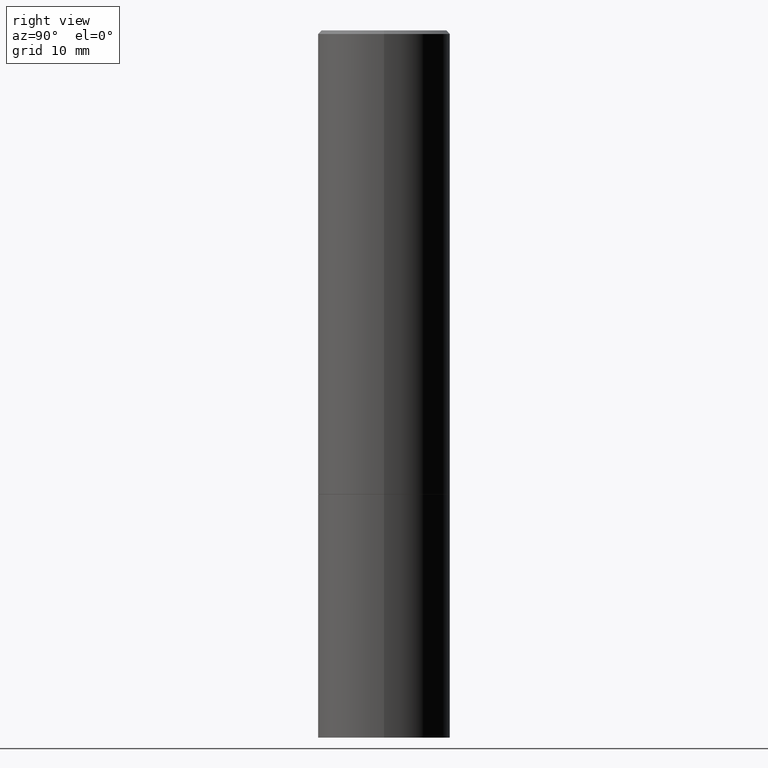
[diagram: clean part render]
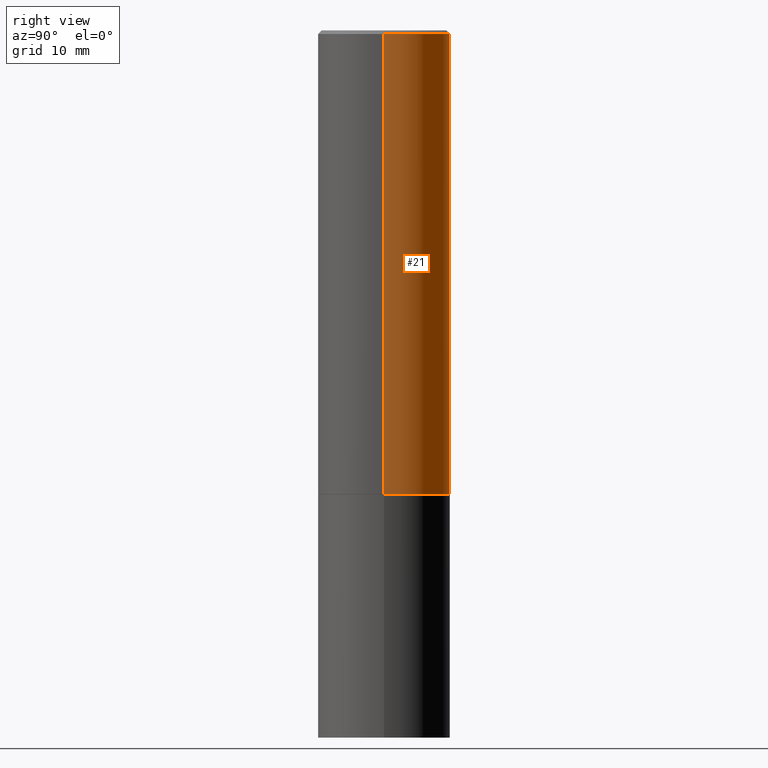
[diagram: same view with one face highlighted and labeled with its STEP entity id]
A machine part, right view. The second image highlights one B-rep face of the part: STEP entity #21.
In plain terms, the highlighted cylindrical surface (partial cylindrical patch) has radius 9.525 mm, axis along (-0, 0, 1).
Its self-contained STEP definition (entity closure, byte-faithful):
#6 = VERTEX_POINT ( 'NONE', #248 ) ;
#13 = CIRCLE ( 'NONE', #149, 0.3749999999999996114 ) ;
#21 = ADVANCED_FACE ( 'NONE', ( #101 ), #167, .T. ) ;
#29 = EDGE_CURVE ( 'NONE', #322, #237, #172, .T. ) ;
#51 = VECTOR ( 'NONE', #116, 39.37007874015748143 ) ;
#56 = DIRECTION ( 'NONE',  ( -2.445468806185136597E-29, 3.491481338843145583E-15, 1.000000000000000000 ) ) ;
#59 = CARTESIAN_POINT ( 'NONE',  ( -0.3749999999999996114, 2.548781377355483957E-15, -0.02000000000000008715 ) ) ;
#66 = ORIENTED_EDGE ( 'NONE', *, *, #76, .F. ) ;
#69 = ORIENTED_EDGE ( 'NONE', *, *, #265, .T. ) ;
#72 = CARTESIAN_POINT ( 'NONE',  ( -0.3749999999999999445, -1.951203070850261571E-15, -2.624000000000000110 ) ) ;
#76 = EDGE_CURVE ( 'NONE', #151, #6, #309, .T. ) ;
#88 = CARTESIAN_POINT ( 'NONE',  ( 6.416910147429799085E-29, -9.161647033124413605E-15, -2.624000000000000110 ) ) ;
#100 = VECTOR ( 'NONE', #279, 39.37007874015748143 ) ;
#101 = FACE_OUTER_BOUND ( 'NONE', #268, .T. ) ;
#114 = DIRECTION ( 'NONE',  ( 1.000000000000000000, -6.982962677686266711E-15, 0.000000000000000000 ) ) ;
#116 = DIRECTION ( 'NONE',  ( -2.445468806185136877E-29, 3.491481338843145188E-15, 1.000000000000000000 ) ) ;
#124 = AXIS2_PLACEMENT_3D ( 'NONE', #131, #350, #214 ) ;
#125 = CIRCLE ( 'NONE', #354, 0.3750000000000000555 ) ;
#131 = CARTESIAN_POINT ( 'NONE',  ( 0.000000000000000000, 0.000000000000000000, 0.000000000000000000 ) ) ;
#149 = AXIS2_PLACEMENT_3D ( 'NONE', #259, #231, #114 ) ;
#151 = VERTEX_POINT ( 'NONE', #243 ) ;
#167 = CYLINDRICAL_SURFACE ( 'NONE', #124, 0.3749999999999998335 ) ;
#172 = LINE ( 'NONE', #177, #51 ) ;
#177 = CARTESIAN_POINT ( 'NONE',  ( -0.3749999999999998335, 2.664535259100374514E-15, -1.844600658845588757E-29 ) ) ;
#205 = DIRECTION ( 'NONE',  ( 1.000000000000000000, -6.982962677686266711E-15, 0.000000000000000000 ) ) ;
#214 = DIRECTION ( 'NONE',  ( 1.000000000000000000, -6.982962677686265922E-15, 4.876176775795935793E-29 ) ) ;
#217 = EDGE_CURVE ( 'NONE', #6, #237, #13, .T. ) ;
#231 = DIRECTION ( 'NONE',  ( -2.445468806185136597E-29, 3.491481338843145583E-15, 1.000000000000000000 ) ) ;
#237 = VERTEX_POINT ( 'NONE', #59 ) ;
#243 = CARTESIAN_POINT ( 'NONE',  ( 0.3750000000000000555, -1.178025803725676520E-14, -2.624000000000000110 ) ) ;
#248 = CARTESIAN_POINT ( 'NONE',  ( 0.3749999999999996114, -2.642516375941185268E-15, -0.02000000000000008715 ) ) ;
#252 = CARTESIAN_POINT ( 'NONE',  ( 0.3749999999999998335, -2.618611004132348439E-15, 1.828566290923475082E-29 ) ) ;
#259 = CARTESIAN_POINT ( 'NONE',  ( 4.890937612370294178E-31, -6.982962677686321191E-17, -0.02000000000000008715 ) ) ;
#265 = EDGE_CURVE ( 'NONE', #151, #322, #125, .T. ) ;
#268 = EDGE_LOOP ( 'NONE', ( #69, #339, #296, #66 ) ) ;
#279 = DIRECTION ( 'NONE',  ( -2.445468806185136877E-29, 3.491481338843145188E-15, 1.000000000000000000 ) ) ;
#296 = ORIENTED_EDGE ( 'NONE', *, *, #217, .F. ) ;
#309 = LINE ( 'NONE', #252, #100 ) ;
#322 = VERTEX_POINT ( 'NONE', #72 ) ;
#339 = ORIENTED_EDGE ( 'NONE', *, *, #29, .T. ) ;
#350 = DIRECTION ( 'NONE',  ( -2.445468806185136597E-29, 3.491481338843145583E-15, 1.000000000000000000 ) ) ;
#354 = AXIS2_PLACEMENT_3D ( 'NONE', #88, #56, #205 ) ;